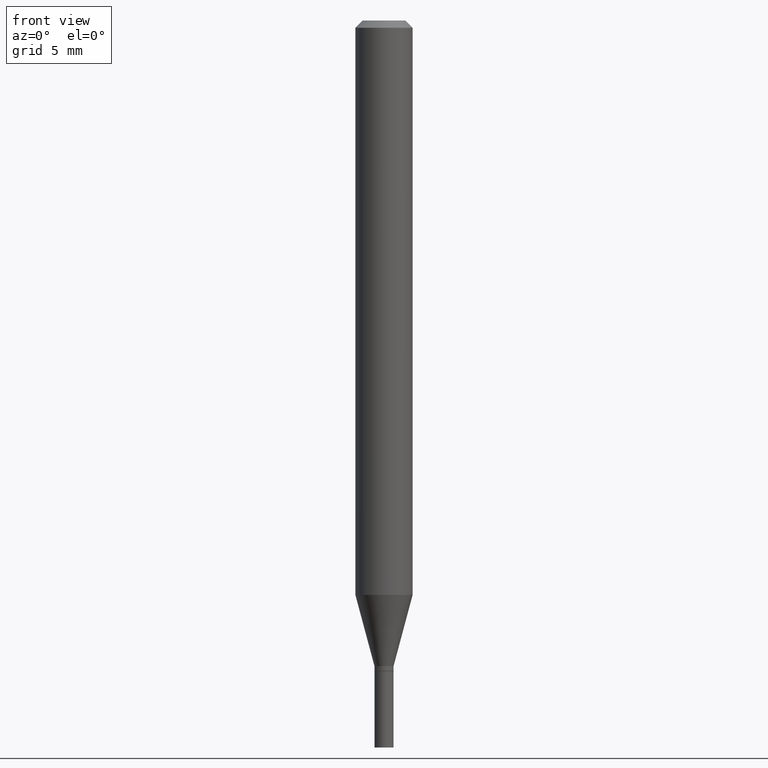
[diagram: clean part render]
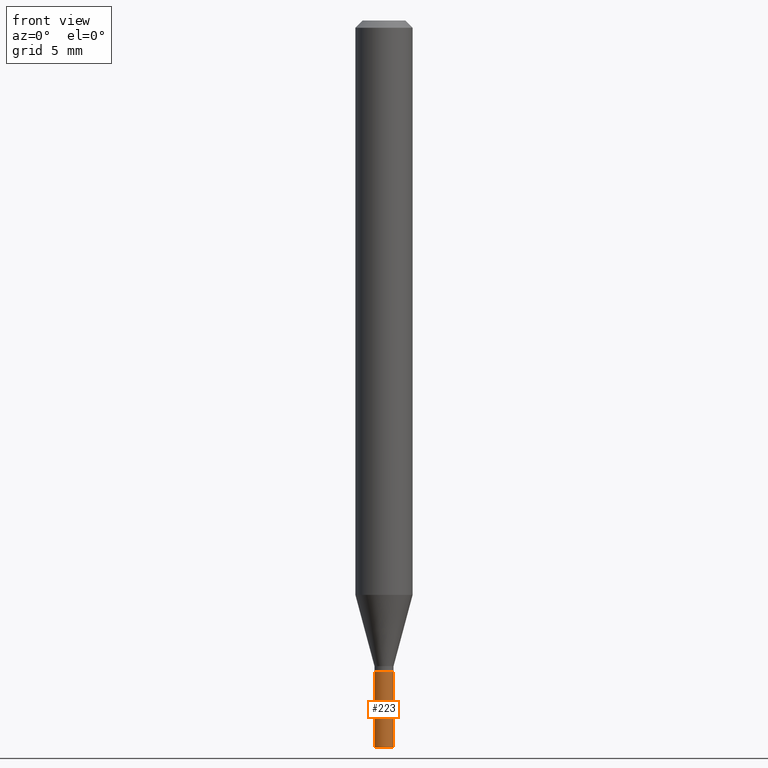
[diagram: same view with one face highlighted and labeled with its STEP entity id]
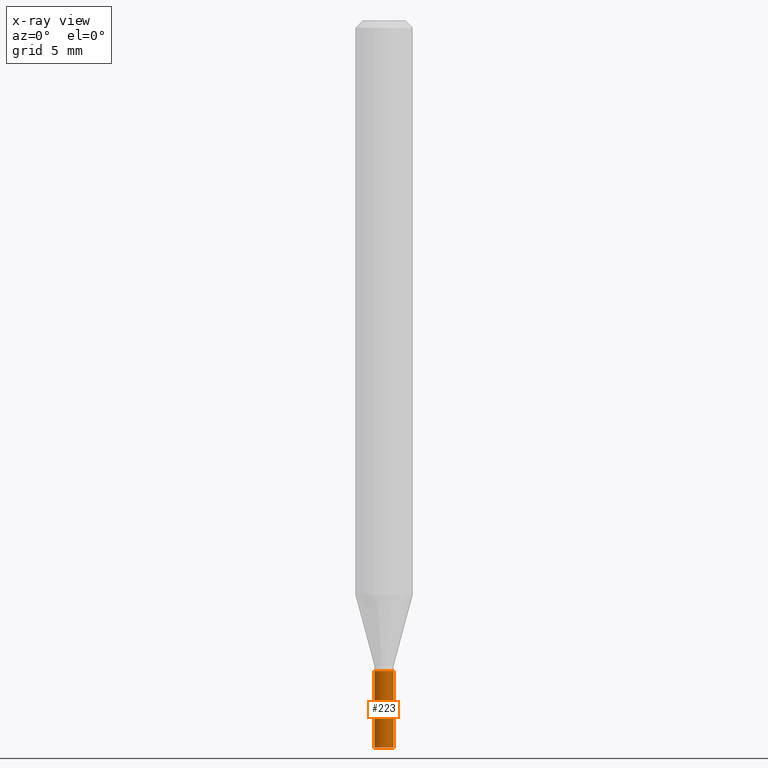
[diagram: x-ray of the same camera — body ghosted, the highlighted face saturated]
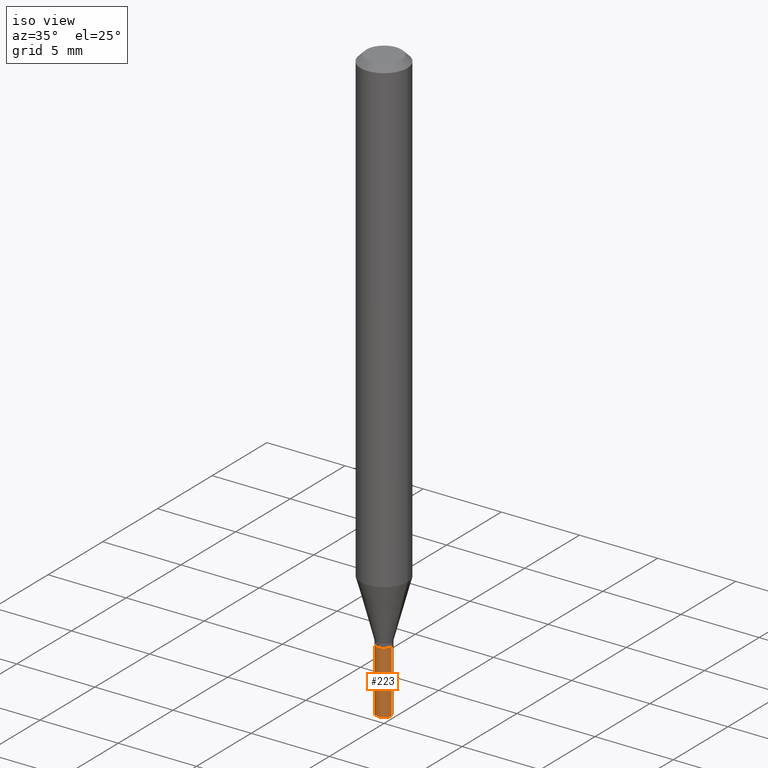
[diagram: same view with one face highlighted and labeled with its STEP entity id]
A machine part, front view. The second image highlights one B-rep face of the part: STEP entity #223.
The next image is the same camera in x-ray: the body ghosted, the highlighted face saturated — about 0% of this face is hidden behind the body in this view.
A second angle (iso view) of the same face is appended — the face is thin or edge-on in the first view.
In plain terms, the highlighted cylindrical surface (edge-blend (fillet) strip) has radius 0.5004 mm, axis along (-0, 0, 1).
Its self-contained STEP definition (entity closure, byte-faithful):
#13 = ORIENTED_EDGE ( 'NONE', *, *, #427, .F. ) ;
#79 = AXIS2_PLACEMENT_3D ( 'NONE', #299, #264, #382 ) ;
#87 = ORIENTED_EDGE ( 'NONE', *, *, #342, .T. ) ;
#127 = VERTEX_POINT ( 'NONE', #430 ) ;
#131 = VERTEX_POINT ( 'NONE', #204 ) ;
#157 = VERTEX_POINT ( 'NONE', #440 ) ;
#158 = DIRECTION ( 'NONE',  ( -2.445468806185136597E-29, 3.491481338843145583E-15, 1.000000000000000000 ) ) ;
#167 = DIRECTION ( 'NONE',  ( -2.445468806185136877E-29, 3.491481338843145188E-15, 1.000000000000000000 ) ) ;
#204 = CARTESIAN_POINT ( 'NONE',  ( 0.01969999999999999876, -5.374786373015138180E-15, -1.500000000000000222 ) ) ;
#219 = CYLINDRICAL_SURFACE ( 'NONE', #279, 0.01969999999999999876 ) ;
#220 = AXIS2_PLACEMENT_3D ( 'NONE', #258, #158, #336 ) ;
#223 = ADVANCED_FACE ( 'NONE', ( #397 ), #219, .T. ) ;
#257 = CARTESIAN_POINT ( 'NONE',  ( 0.000000000000000000, 0.000000000000000000, 0.000000000000000000 ) ) ;
#258 = CARTESIAN_POINT ( 'NONE',  ( 3.668203209277704895E-29, -5.237222008264718177E-15, -1.500000000000000222 ) ) ;
#264 = DIRECTION ( 'NONE',  ( -2.445468806185136597E-29, 3.491481338843145583E-15, 1.000000000000000000 ) ) ;
#265 = ORIENTED_EDGE ( 'NONE', *, *, #366, .F. ) ;
#267 = ORIENTED_EDGE ( 'NONE', *, *, #271, .T. ) ;
#271 = EDGE_CURVE ( 'NONE', #131, #127, #290, .T. ) ;
#279 = AXIS2_PLACEMENT_3D ( 'NONE', #257, #402, #292 ) ;
#290 = LINE ( 'NONE', #395, #453 ) ;
#292 = DIRECTION ( 'NONE',  ( 1.000000000000000000, -6.982962677686265922E-15, 4.876176775795935232E-29 ) ) ;
#299 = CARTESIAN_POINT ( 'NONE',  ( 3.283041872303546419E-29, -4.687313697396923253E-15, -1.342500000000000249 ) ) ;
#314 = VERTEX_POINT ( 'NONE', #445 ) ;
#336 = DIRECTION ( 'NONE',  ( 1.000000000000000000, -6.982962677686278543E-15, 0.000000000000000000 ) ) ;
#342 = EDGE_CURVE ( 'NONE', #157, #131, #423, .T. ) ;
#360 = VECTOR ( 'NONE', #167, 39.37007874015748143 ) ;
#366 = EDGE_CURVE ( 'NONE', #157, #314, #441, .T. ) ;
#382 = DIRECTION ( 'NONE',  ( 1.000000000000000000, -6.982962677686278543E-15, 0.000000000000000000 ) ) ;
#395 = CARTESIAN_POINT ( 'NONE',  ( 0.01969999999999999876, -1.375643647504194363E-16, 9.606068248317991466E-31 ) ) ;
#397 = FACE_OUTER_BOUND ( 'NONE', #446, .T. ) ;
#402 = DIRECTION ( 'NONE',  ( -2.445468806185136597E-29, 3.491481338843145583E-15, 1.000000000000000000 ) ) ;
#423 = CIRCLE ( 'NONE', #220, 0.01969999999999999876 ) ;
#427 = EDGE_CURVE ( 'NONE', #314, #127, #431, .T. ) ;
#430 = CARTESIAN_POINT ( 'NONE',  ( 0.01969999999999999876, -4.824878062147343257E-15, -1.342500000000000249 ) ) ;
#431 = CIRCLE ( 'NONE', #79, 0.01969999999999999876 ) ;
#434 = DIRECTION ( 'NONE',  ( -2.445468806185136877E-29, 3.491481338843145188E-15, 1.000000000000000000 ) ) ;
#440 = CARTESIAN_POINT ( 'NONE',  ( -0.01969999999999999876, -4.822290933886080617E-15, -1.500000000000000222 ) ) ;
#441 = LINE ( 'NONE', #449, #360 ) ;
#445 = CARTESIAN_POINT ( 'NONE',  ( -0.01969999999999999876, -4.822290933886080617E-15, -1.342500000000000249 ) ) ;
#446 = EDGE_LOOP ( 'NONE', ( #265, #87, #267, #13 ) ) ;
#449 = CARTESIAN_POINT ( 'NONE',  ( -0.01969999999999999876, 1.399769189447397278E-16, -9.690302127802162501E-31 ) ) ;
#453 = VECTOR ( 'NONE', #434, 39.37007874015748143 ) ;